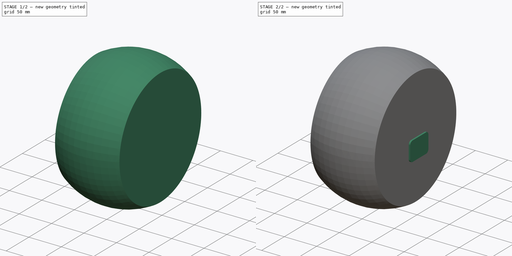
[diagram: build sequence overview — one tinted view per stage of 2, left to right]
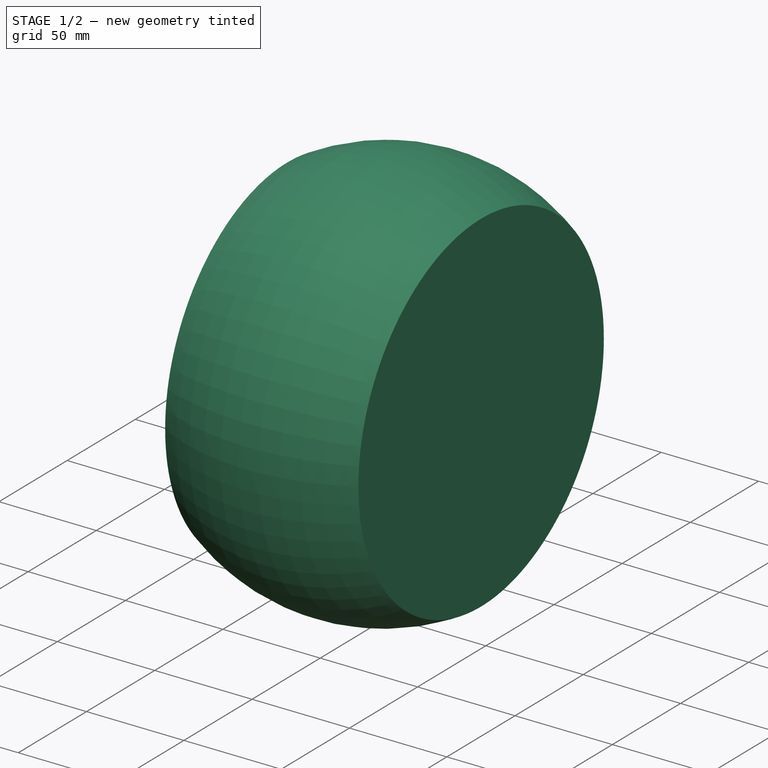
[diagram: stage 1 of 2 — iso view after this stage's code; geometry added in this stage tinted green]
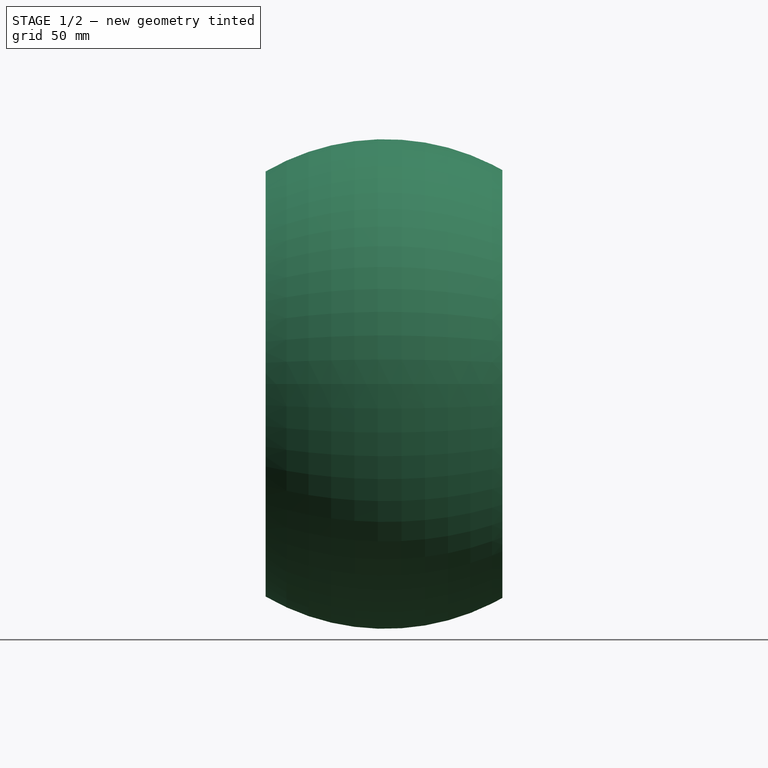
[diagram: stage 1 of 2 — front view after this stage's code; geometry added in this stage tinted green]
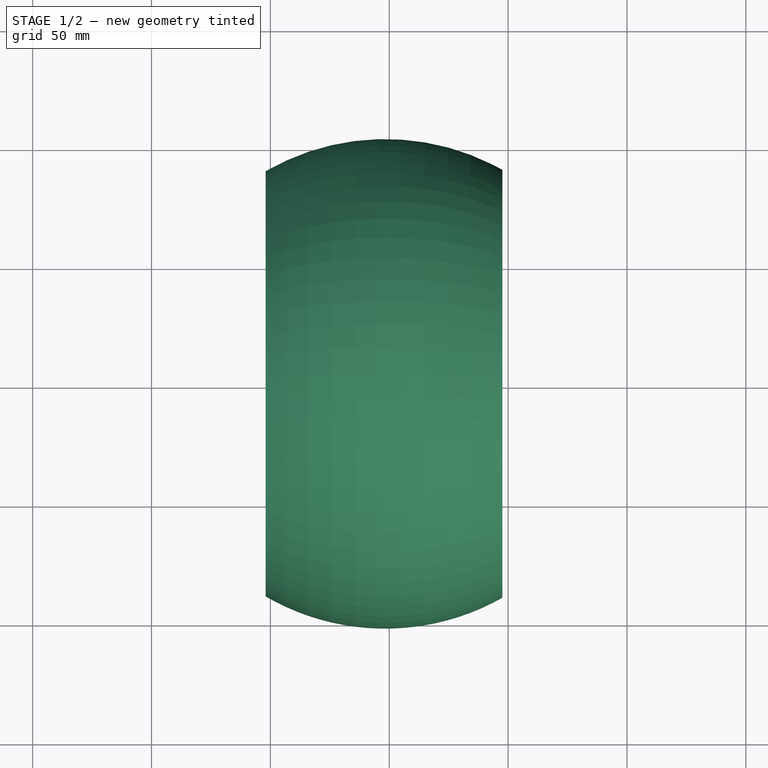
[diagram: stage 1 of 2 — top view after this stage's code; geometry added in this stage tinted green]
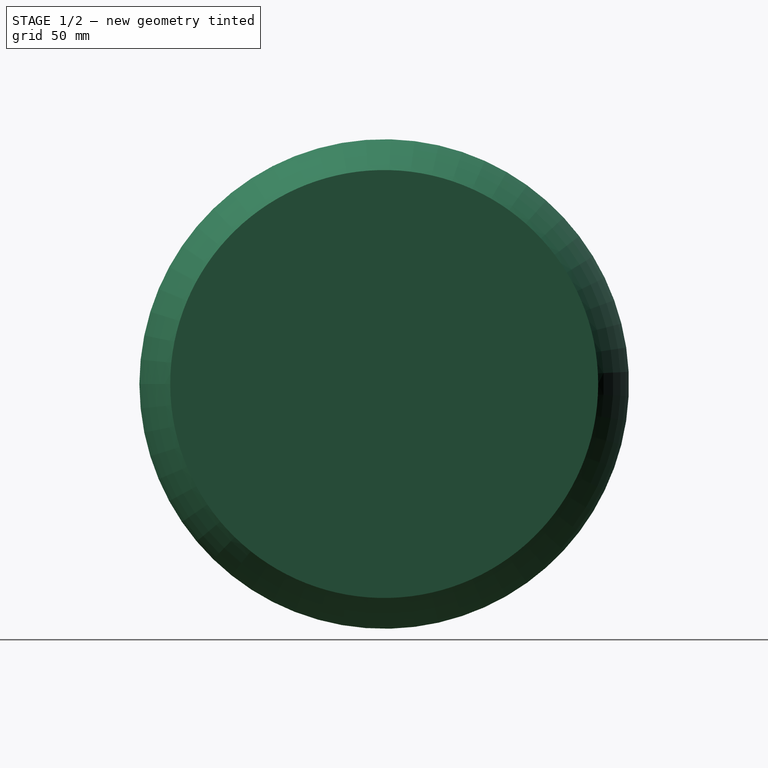
[diagram: stage 1 of 2 — right view after this stage's code; geometry added in this stage tinted green]
FCSTD DOCUMENT  (FreeCAD 0.19R)
Label: DUVIDO-02
License: Creative Commons Attribution-NonCommercial
LicenseURL: http://creativecommons.org/licenses/by-nc/4.0/
objects: Sketcher::SketchObject×3, Part::Part2DObjectPython×1, Part::Extrusion×1, Part::Line×1, Part::Revolution×1
note: 7 computed .brp shape members not serialized (recipe doc carries the construction recipe); baked Part::Feature solids carry a one-line shape summary decoded from their .brp

FEATURE [Sketcher::SketchObject] Sketch001
  sketch-geometry (15):
    g0: ArcOfCircle CenterX=48.2885 CenterY=-3.00116 CenterZ=0 NormalX=0 NormalY=0 NormalZ=1 AngleXU=0 Radius=100 StartAngle=4.1853 EndAngle=5.22801
    g1: LineSegment [constr] StartX=148.281 StartY=-4.24848 StartZ=0 EndX=99.7505 EndY=82.7407 EndZ=0
    g2: LineSegment [constr] StartX=99.7505 StartY=82.7407 StartZ=0 EndX=0.158155 EndY=84.6543 EndZ=0
    g3: LineSegment [constr] StartX=0.913568 StartY=85.0648 StartZ=0 EndX=-47.2061 EndY=-2.15208 EndZ=0
    g4: LineSegment [constr] StartX=-51.7115 StartY=-3.1015 StartZ=0 EndX=-2.01338 EndY=-89.4287 EndZ=0
    g5: LineSegment [constr] StartX=-2.01338 StartY=-89.4287 StartZ=0 EndX=97.5957 EndY=-90 EndZ=0
    g6: LineSegment [constr] StartX=97.5957 StartY=-90 StartZ=0 EndX=148.281 EndY=-4.24848 EndZ=0
    g7: Circle [constr] CenterX=48.2885 CenterY=-3.00116 CenterZ=0 NormalX=0 NormalY=0 NormalZ=1 AngleXU=0 Radius=100
    g8: ArcOfCircle [constr] CenterX=48.2885 CenterY=-3.00116 CenterZ=0 NormalX=0 NormalY=0 NormalZ=1 AngleXU=0 Radius=100 StartAngle=1.03023 EndAngle=2.07294
    g9: LineSegment [constr] StartX=0 StartY=0 StartZ=0 EndX=97.2957 EndY=0 EndZ=0
    g10: LineSegment StartX=-2.01338 StartY=-89.4287 StartZ=0 EndX=-2.01338 EndY=-89.0287 EndZ=0
    g11: ArcOfCircle CenterX=48.2885 CenterY=-3.00116 CenterZ=0 NormalX=0 NormalY=0 NormalZ=1 AngleXU=0 Radius=99.6545 StartAngle=4.18328 EndAngle=5.22651
    g12: LineSegment StartX=97.5957 StartY=0 StartZ=0 EndX=97.5957 EndY=-90 EndZ=0
    g13: LineSegment StartX=97.2957 StartY=-89.7728 StartZ=0 EndX=97.2957 EndY=0 EndZ=0
    g14: LineSegment StartX=97.2957 StartY=0 StartZ=0 EndX=97.5957 EndY=0 EndZ=0
  constraints (35):
    c: Coincident(g1,g2)
    c: Coincident(g4,g5)
    c: Coincident(g5,g6)
    c: Coincident(g6,g1)
    c: Equal(g1, g2-g6) x5
    c: PointOnObject(g1,g7)
    c: PointOnObject(g3,g7)
    c: PointOnObject(g4,g7)
    c: PointOnObject(g4,g7)
    c: PointOnObject(g6,g7)
    c: Coincident(g7,g0)
    c: Coincident(g8,g2)
    c: Equal(g0,g8)
    c: PointOnObject(g8,g2)
    c: Coincident(g0,g8)
    c: Coincident(g9,g-1)
    c: Horizontal(g9)
    c: Coincident(g10,g0)
    c: Vertical(g10)
    c: Coincident(g0,g5)
    c: Coincident(g0,g4)
    c: DistanceY(g5,g12) = 90
    c: Diameter(g7) = 200
    c: Coincident(g11,g0)
    c: Coincident(g10,g11)
    c: DistanceY(g10,g10) = 0.4
    c: Coincident(g12,g0)
    c: Vertical(g12)
    c: Vertical(g13)
    c: Coincident(g9,g13)
    c: Coincident(g11,g13)
    c: Coincident(g14,g13)
    c: Coincident(g14,g12)
    c: Horizontal(g14)
    c: DistanceX(g14,g14) = 0.3
FEATURE [Part::Line] Line
  AttacherType = Attacher::AttachEngine3D
  X1 = -0.111298
  X2 = 90.092
  Y1 = 1.15462
  Y2 = 1.15462
  Z1 = 0
  Z2 = 0
FEATURE [Part::Revolution] Revolve
  Angle = 360
  Axis = (1,0,0)
  Base = (0,0,0)
  FaceMakerClass = Part::FaceMakerBullseye
  Solid = true
  Source = -> Sketch001
  Symmetric = false
FEATURE [Sketcher::SketchObject] Sketch002
  MapMode = 5
  Placement = pos=(97.2957,0,0) rot=(0.57735,-0.57735,-0.57735;2.0944rad)
  Support = -> [Revolve]
  sketch-geometry (1):
    g0: Circle CenterX=0 CenterY=0 CenterZ=0 NormalX=0 NormalY=0 NormalZ=1 AngleXU=0 Radius=35
  constraints (2):
    c: Coincident(g0,g-1)
    c: Diameter(g0) = 70
note: 1 file-system path scrubbed to <path> (originals preserved in the JSON sidecar)
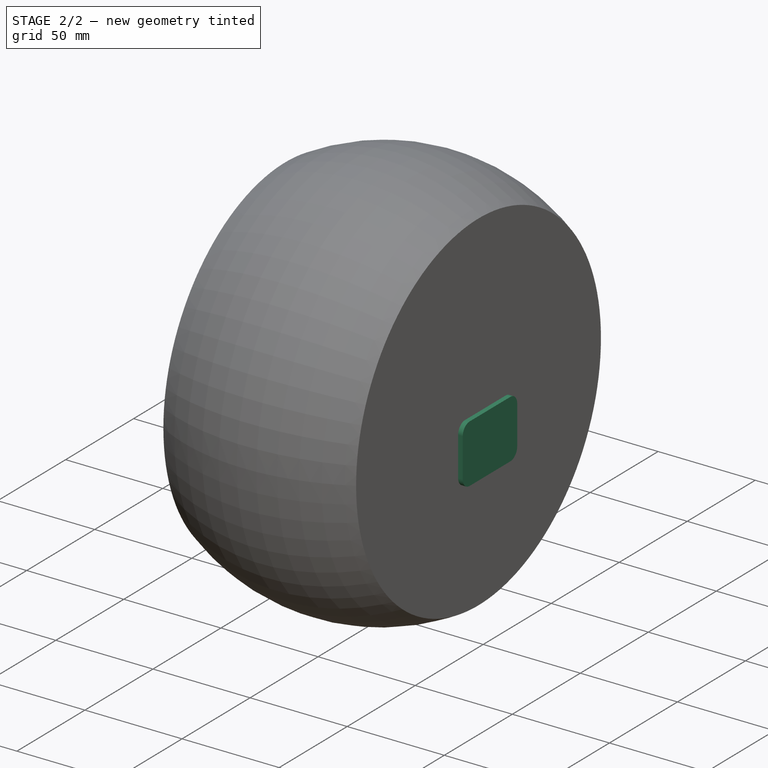
[diagram: stage 2 of 2 — iso view after this stage's code; geometry added in this stage tinted green]
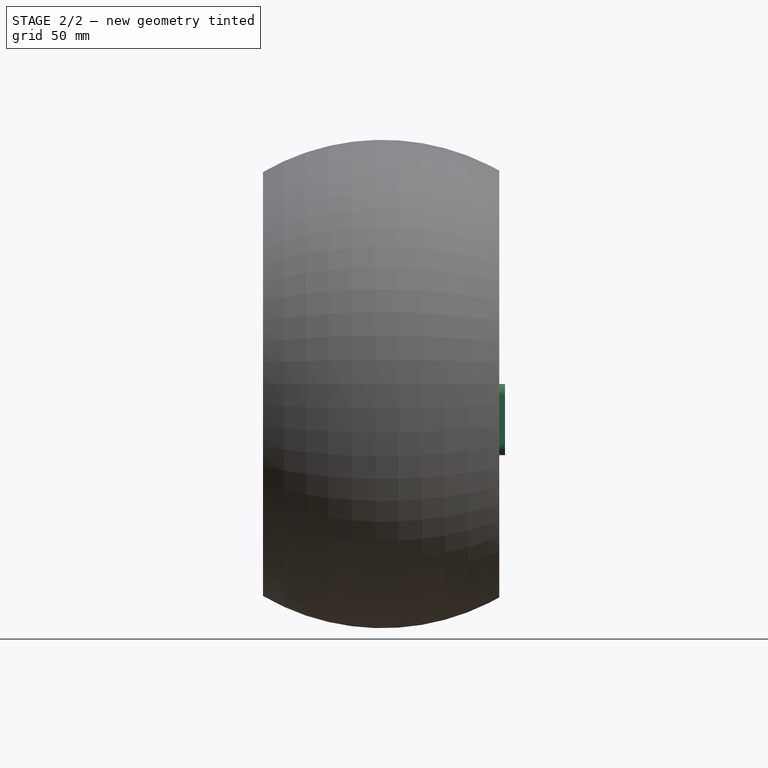
[diagram: stage 2 of 2 — front view after this stage's code; geometry added in this stage tinted green]
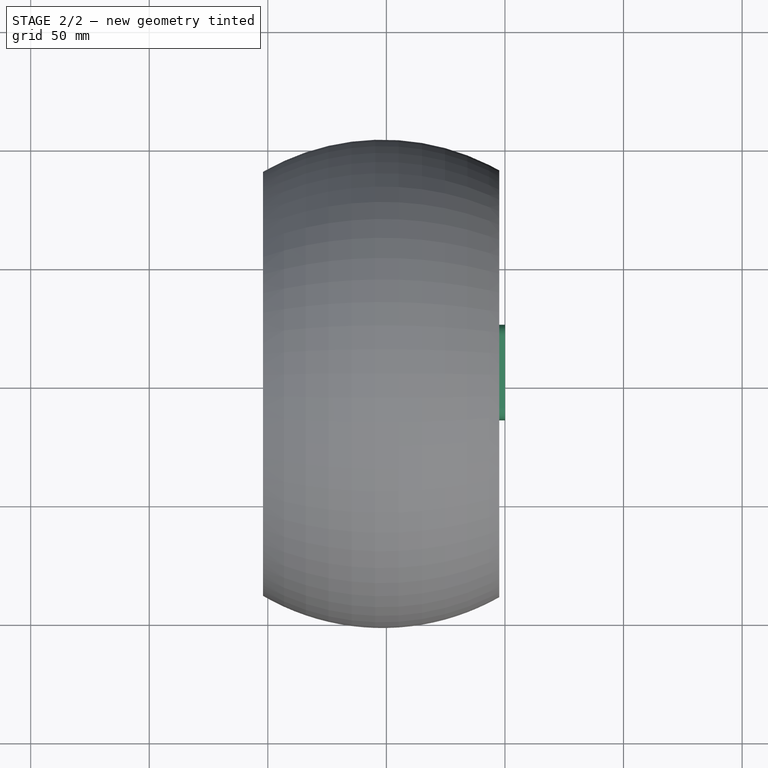
[diagram: stage 2 of 2 — top view after this stage's code; geometry added in this stage tinted green]
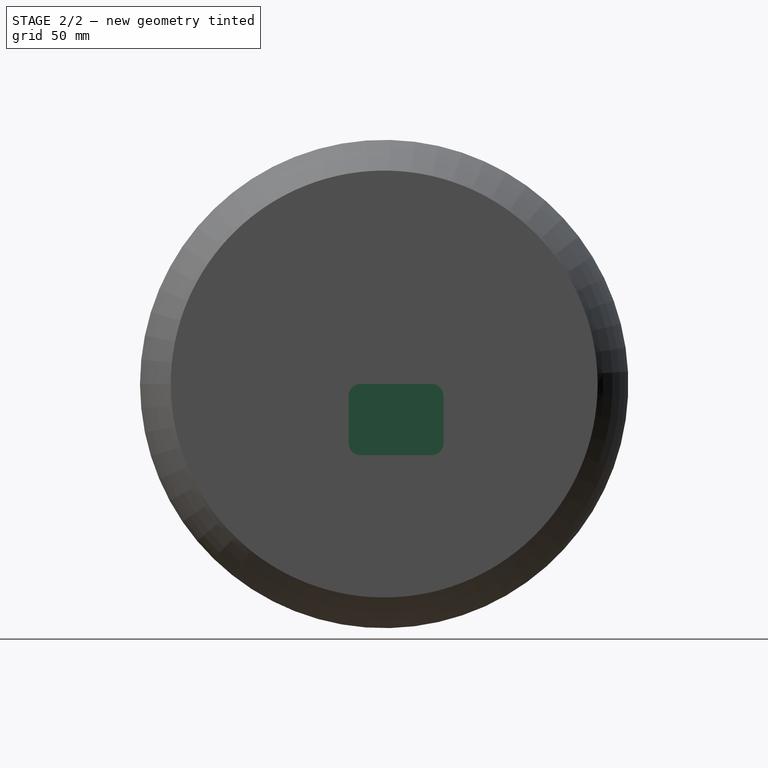
[diagram: stage 2 of 2 — right view after this stage's code; geometry added in this stage tinted green]
FEATURE [Part::Part2DObjectPython] ShapeString001  # Draft 2D object (typed FeaturePython)
  FontFile = <path>
  Placement = pos=(5,7,0) rot=(0,0,1;0rad)
  Size = 13
  String = #Latinoware
  Tracking = 0
FEATURE [Sketcher::SketchObject] Sketch
  Placement = pos=(0,0,0) rot=(0.57735,0.57735,0.57735;2.0944rad)
  sketch-geometry (12):
    g0: LineSegment StartX=-10 StartY=0 StartZ=0 EndX=20 EndY=0 EndZ=0
    g1: LineSegment StartX=25 StartY=-5 StartZ=0 EndX=25 EndY=-25 EndZ=0
    g2: LineSegment StartX=20 StartY=-30 StartZ=0 EndX=-10 EndY=-30 EndZ=0
    g3: LineSegment StartX=-15 StartY=-25 StartZ=0 EndX=-15 EndY=-5 EndZ=0
    g4: ArcOfCircle CenterX=20 CenterY=-5 CenterZ=0 NormalX=0 NormalY=0 NormalZ=1 AngleXU=0 Radius=5 StartAngle=0 EndAngle=1.5708
    g5: ArcOfCircle CenterX=20 CenterY=-25 CenterZ=0 NormalX=0 NormalY=0 NormalZ=1 AngleXU=0 Radius=5 StartAngle=4.71239 EndAngle=6.28319
    g6: ArcOfCircle CenterX=-10 CenterY=-25 CenterZ=0 NormalX=0 NormalY=0 NormalZ=1 AngleXU=0 Radius=5 StartAngle=3.14159 EndAngle=4.71239
    g7: ArcOfCircle CenterX=-10 CenterY=-5 CenterZ=0 NormalX=0 NormalY=0 NormalZ=1 AngleXU=0 Radius=5 StartAngle=1.5708 EndAngle=3.14159
    g8: LineSegment [constr] StartX=-10 StartY=-5 StartZ=0 EndX=20 EndY=-5 EndZ=0
    g9: LineSegment [constr] StartX=20 StartY=-5 StartZ=0 EndX=20 EndY=-25 EndZ=0
    g10: LineSegment [constr] StartX=20 StartY=-25 StartZ=0 EndX=-10 EndY=-25 EndZ=0
    g11: LineSegment [constr] StartX=-10 StartY=-25 StartZ=0 EndX=-10 EndY=-5 EndZ=0
  constraints (26):
    c: Horizontal(g0)
    c: Horizontal(g2)
    c: Vertical(g1)
    c: Vertical(g3)
    c: Tangent(g0,g4) = 1.5708
    c: Tangent(g1,g4) = 1.5708
    c: Tangent(g1,g5) = 1.5708
    c: Tangent(g2,g5) = 1.5708
    c: Tangent(g2,g6) = 1.5708
    c: Tangent(g3,g6) = 1.5708
    c: Tangent(g3,g7) = 1.5708
    c: Tangent(g0,g7) = 1.5708
    c: Coincident(g8,g9)
    c: Coincident(g9,g10)
    c: Coincident(g10,g11)
    c: Coincident(g11,g8)
    c: Horizontal(g8)
    c: Horizontal(g10)
    c: Vertical(g9)
    c: Coincident(g8,g7)
    c: Coincident(g9,g5)
    c: Coincident(g4,g8)
    c: Coincident(g6,g10)
    c: DistanceX(g10,g10) = 30
    c: DistanceY(g9,g9) = 20
    c: Radius(g4) = 5
FEATURE [Part::Extrusion] Extrude004
  Base = -> Sketch
  Dir = (1,0,0)
  DirMode = 2
  FaceMakerClass = Part::FaceMakerBullseye
  LengthFwd = 100
  LengthRev = 0
  Solid = true
  Symmetric = false
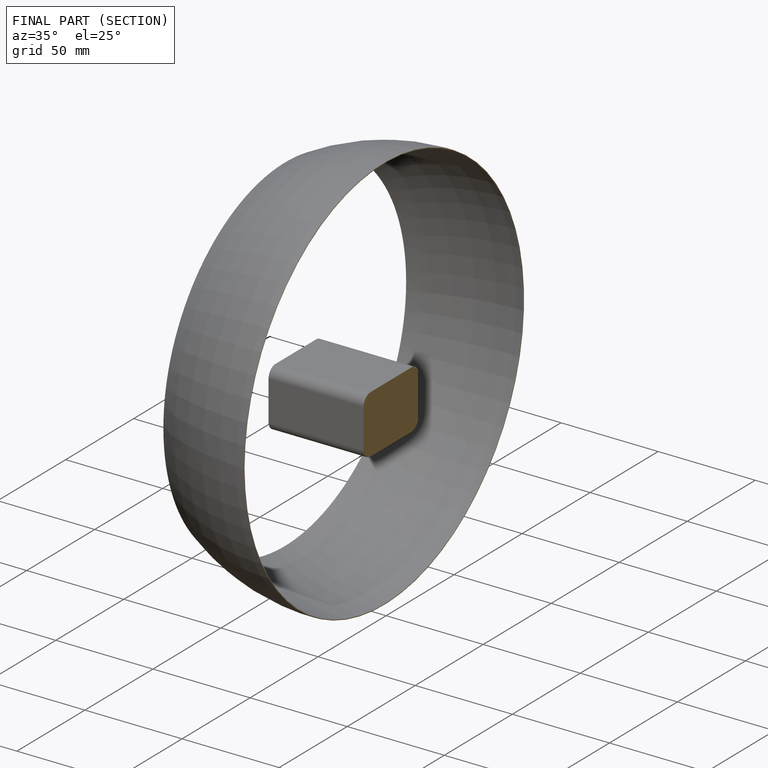
[diagram: finished part — half-section view (interior)]
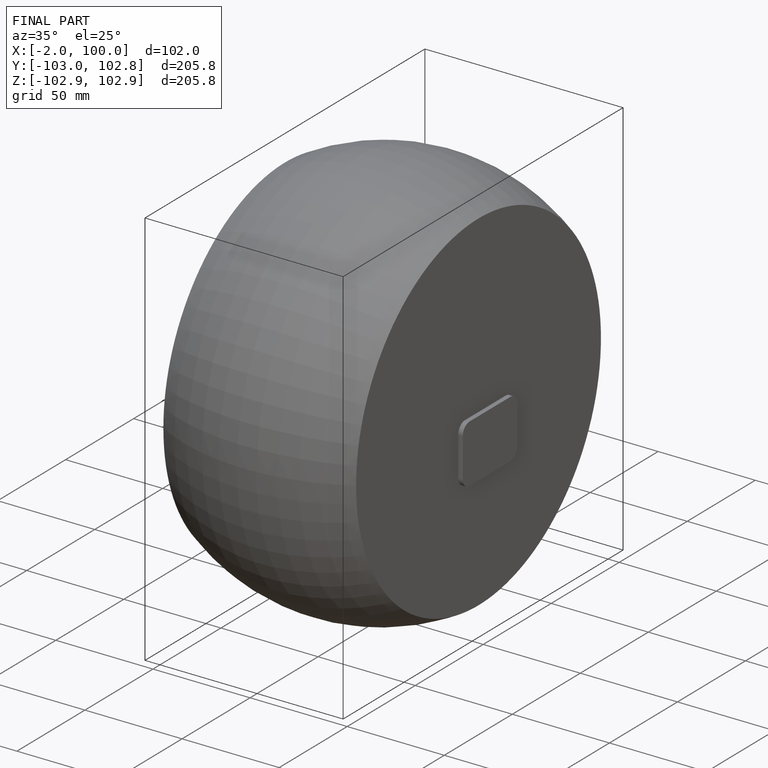
[diagram: finished part — iso view with bounding-box wireframe]
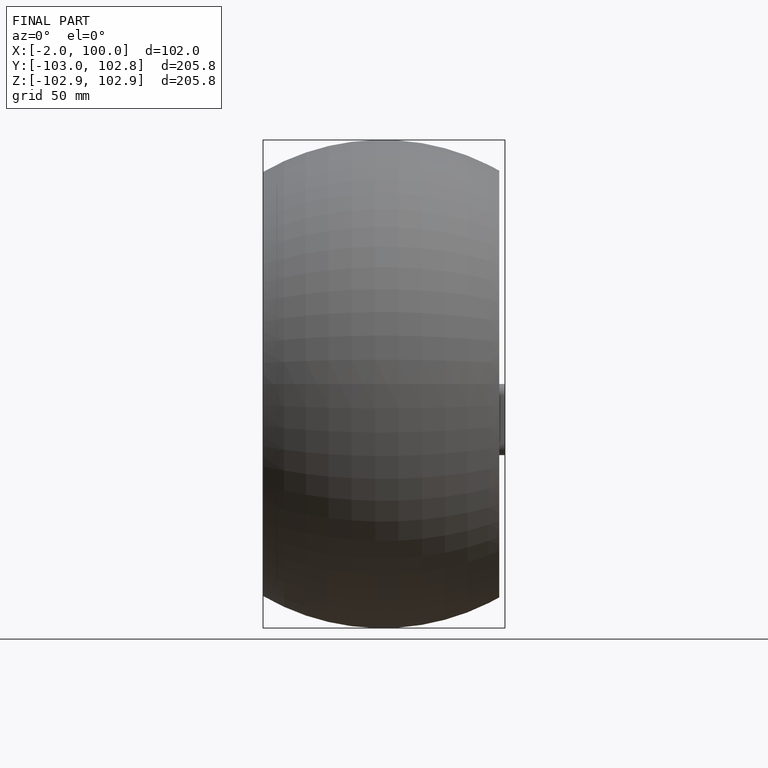
[diagram: finished part — front view with bounding-box wireframe]
